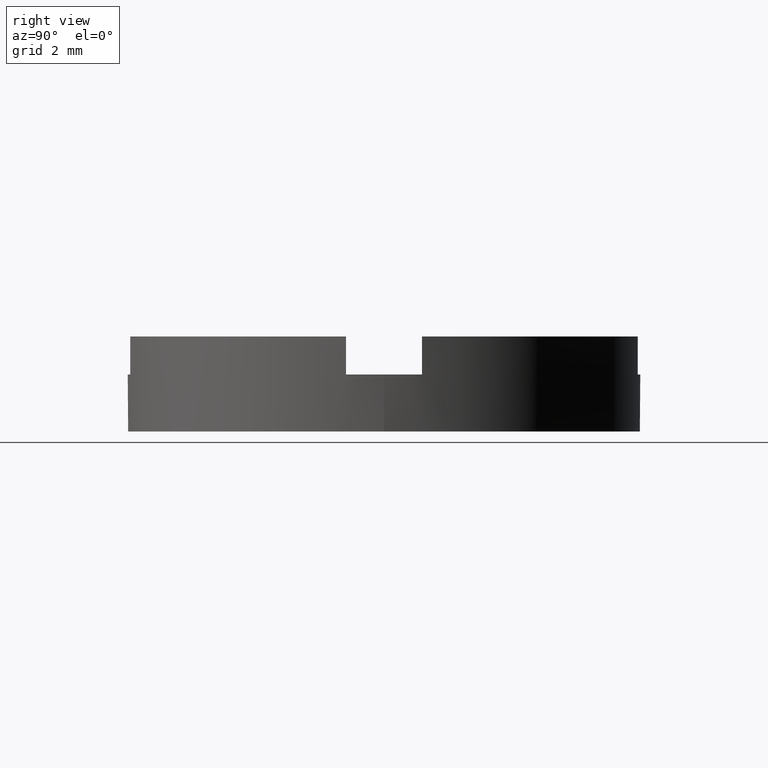
[diagram: clean part render]
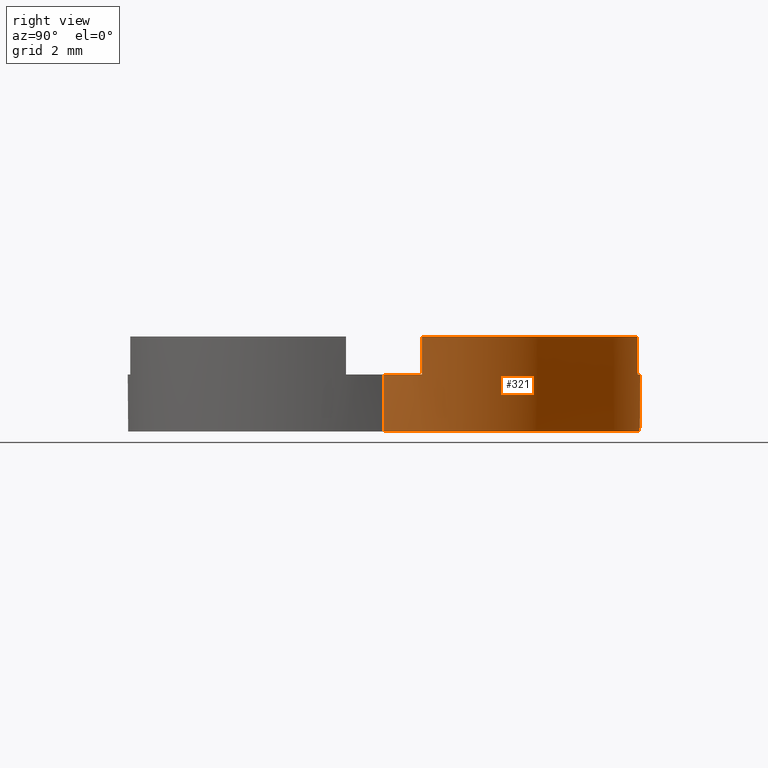
[diagram: same view with one face highlighted and labeled with its STEP entity id]
A machine part, right view. The second image highlights one B-rep face of the part: STEP entity #321.
In plain terms, the highlighted cylindrical surface (partial cylindrical patch) has radius 6.75 mm, axis along (-0, -0, -1).
Its self-contained STEP definition (entity closure, byte-faithful):
#16 = AXIS2_PLACEMENT_3D ( 'NONE', #192, #484, #525 ) ;
#33 = DIRECTION ( 'NONE',  ( 1.000000000000000000, 0.000000000000000000, 0.000000000000000000 ) ) ;
#34 = AXIS2_PLACEMENT_3D ( 'NONE', #264, #398, #759 ) ;
#45 = CIRCLE ( 'NONE', #547, 6.750000000000000000 ) ;
#48 = LINE ( 'NONE', #218, #54 ) ;
#54 = VECTOR ( 'NONE', #160, 1000.000000000000000 ) ;
#55 = AXIS2_PLACEMENT_3D ( 'NONE', #100, #286, #506 ) ;
#58 = CIRCLE ( 'NONE', #34, 6.750000000000000000 ) ;
#69 = EDGE_CURVE ( 'NONE', #336, #621, #58, .T. ) ;
#70 = DIRECTION ( 'NONE',  ( 0.000000000000000000, 0.000000000000000000, 1.000000000000000000 ) ) ;
#74 = VERTEX_POINT ( 'NONE', #554 ) ;
#77 = VECTOR ( 'NONE', #776, 1000.000000000000000 ) ;
#100 = CARTESIAN_POINT ( 'NONE',  ( 0.000000000000000000, 0.000000000000000000, 2.500000000000000000 ) ) ;
#104 = CIRCLE ( 'NONE', #134, 6.750000000000000000 ) ;
#110 = LINE ( 'NONE', #292, #77 ) ;
#111 = ORIENTED_EDGE ( 'NONE', *, *, #700, .F. ) ;
#112 = CARTESIAN_POINT ( 'NONE',  ( 6.675514961409347414, 0.9999999999999737987, 1.500000000000000000 ) ) ;
#119 = ORIENTED_EDGE ( 'NONE', *, *, #782, .F. ) ;
#124 = ORIENTED_EDGE ( 'NONE', *, *, #415, .F. ) ;
#125 = CARTESIAN_POINT ( 'NONE',  ( 1.000000000000001332, 6.675514961409343861, 2.500000000000000000 ) ) ;
#131 = CIRCLE ( 'NONE', #178, 6.750000000000000000 ) ;
#134 = AXIS2_PLACEMENT_3D ( 'NONE', #705, #771, #33 ) ;
#135 = CARTESIAN_POINT ( 'NONE',  ( 1.000000000000001332, 6.675514961409343861, 1.500000000000000000 ) ) ;
#136 = EDGE_LOOP ( 'NONE', ( #119, #202, #726, #380, #124, #386, #636, #111, #742, #743, #460, #666 ) ) ;
#148 = CARTESIAN_POINT ( 'NONE',  ( -6.675514961409340309, 1.000000000000023981, 1.500000000000000000 ) ) ;
#154 = EDGE_CURVE ( 'NONE', #461, #621, #48, .T. ) ;
#160 = DIRECTION ( 'NONE',  ( -0.000000000000000000, -0.000000000000000000, -1.000000000000000000 ) ) ;
#173 = CARTESIAN_POINT ( 'NONE',  ( -0.9999999999999986677, 6.675514961409343861, 1.500000000000000000 ) ) ;
#178 = AXIS2_PLACEMENT_3D ( 'NONE', #190, #676, #377 ) ;
#190 = CARTESIAN_POINT ( 'NONE',  ( 0.000000000000000000, 0.000000000000000000, 1.500000000000000000 ) ) ;
#192 = CARTESIAN_POINT ( 'NONE',  ( 0.000000000000000000, 0.000000000000000000, 1.500000000000000000 ) ) ;
#202 = ORIENTED_EDGE ( 'NONE', *, *, #733, .T. ) ;
#210 = DIRECTION ( 'NONE',  ( -0.000000000000000000, -0.000000000000000000, 1.000000000000000000 ) ) ;
#217 = CARTESIAN_POINT ( 'NONE',  ( 1.000000000000001332, 6.675514961409343861, 1.500000000000000000 ) ) ;
#218 = CARTESIAN_POINT ( 'NONE',  ( -6.750000000000000000, 0.000000000000000000, 2.500000000000000000 ) ) ;
#230 = VERTEX_POINT ( 'NONE', #269 ) ;
#238 = DIRECTION ( 'NONE',  ( -0.000000000000000000, -0.000000000000000000, 1.000000000000000000 ) ) ;
#239 = EDGE_CURVE ( 'NONE', #449, #463, #330, .T. ) ;
#248 = CARTESIAN_POINT ( 'NONE',  ( -6.675514961409340309, 1.000000000000023981, 1.500000000000000000 ) ) ;
#250 = EDGE_CURVE ( 'NONE', #230, #74, #45, .T. ) ;
#257 = DIRECTION ( 'NONE',  ( 0.000000000000000000, 0.000000000000000000, 1.000000000000000000 ) ) ;
#264 = CARTESIAN_POINT ( 'NONE',  ( 0.000000000000000000, 0.000000000000000000, 0.000000000000000000 ) ) ;
#267 = EDGE_CURVE ( 'NONE', #480, #463, #309, .T. ) ;
#269 = CARTESIAN_POINT ( 'NONE',  ( -0.9999999999999986677, 6.675514961409343861, 2.500000000000000000 ) ) ;
#286 = DIRECTION ( 'NONE',  ( -0.000000000000000000, -0.000000000000000000, -1.000000000000000000 ) ) ;
#290 = CARTESIAN_POINT ( 'NONE',  ( 6.675514961409347414, 0.9999999999999737987, 2.500000000000000000 ) ) ;
#292 = CARTESIAN_POINT ( 'NONE',  ( 6.750000000000000000, 8.266365894244634333E-16, 2.500000000000000000 ) ) ;
#309 = LINE ( 'NONE', #217, #593 ) ;
#319 = DIRECTION ( 'NONE',  ( 1.000000000000000000, 0.000000000000000000, 0.000000000000000000 ) ) ;
#321 = ADVANCED_FACE ( 'NONE', ( #605 ), #624, .T. ) ;
#326 = DIRECTION ( 'NONE',  ( -0.000000000000000000, -0.000000000000000000, 1.000000000000000000 ) ) ;
#330 = CIRCLE ( 'NONE', #455, 6.750000000000000000 ) ;
#336 = VERTEX_POINT ( 'NONE', #550 ) ;
#342 = LINE ( 'NONE', #418, #363 ) ;
#354 = CARTESIAN_POINT ( 'NONE',  ( -6.750000000000000000, 0.000000000000000000, 1.500000000000000000 ) ) ;
#356 = VECTOR ( 'NONE', #210, 1000.000000000000000 ) ;
#363 = VECTOR ( 'NONE', #773, 1000.000000000000000 ) ;
#367 = VECTOR ( 'NONE', #238, 1000.000000000000000 ) ;
#377 = DIRECTION ( 'NONE',  ( 1.000000000000000000, 0.000000000000000000, 0.000000000000000000 ) ) ;
#380 = ORIENTED_EDGE ( 'NONE', *, *, #154, .F. ) ;
#386 = ORIENTED_EDGE ( 'NONE', *, *, #504, .T. ) ;
#392 = CIRCLE ( 'NONE', #16, 6.750000000000000000 ) ;
#398 = DIRECTION ( 'NONE',  ( 0.000000000000000000, 0.000000000000000000, 1.000000000000000000 ) ) ;
#415 = EDGE_CURVE ( 'NONE', #599, #461, #104, .T. ) ;
#418 = CARTESIAN_POINT ( 'NONE',  ( 6.675514961409347414, 0.9999999999999737987, 1.500000000000000000 ) ) ;
#431 = CARTESIAN_POINT ( 'NONE',  ( 6.750000000000000000, 8.266365894244634333E-16, 1.500000000000000000 ) ) ;
#447 = DIRECTION ( 'NONE',  ( 1.000000000000000000, 0.000000000000000000, 0.000000000000000000 ) ) ;
#449 = VERTEX_POINT ( 'NONE', #290 ) ;
#455 = AXIS2_PLACEMENT_3D ( 'NONE', #695, #70, #447 ) ;
#460 = ORIENTED_EDGE ( 'NONE', *, *, #239, .F. ) ;
#461 = VERTEX_POINT ( 'NONE', #354 ) ;
#463 = VERTEX_POINT ( 'NONE', #125 ) ;
#480 = VERTEX_POINT ( 'NONE', #135 ) ;
#484 = DIRECTION ( 'NONE',  ( -0.000000000000000000, 0.000000000000000000, 1.000000000000000000 ) ) ;
#504 = EDGE_CURVE ( 'NONE', #599, #74, #604, .T. ) ;
#506 = DIRECTION ( 'NONE',  ( -1.000000000000000000, 0.000000000000000000, 0.000000000000000000 ) ) ;
#525 = DIRECTION ( 'NONE',  ( 1.000000000000000000, 0.000000000000000000, 0.000000000000000000 ) ) ;
#547 = AXIS2_PLACEMENT_3D ( 'NONE', #678, #257, #319 ) ;
#550 = CARTESIAN_POINT ( 'NONE',  ( 6.750000000000000000, 8.266365894244634333E-16, 0.000000000000000000 ) ) ;
#554 = CARTESIAN_POINT ( 'NONE',  ( -6.675514961409340309, 1.000000000000023981, 2.500000000000000000 ) ) ;
#593 = VECTOR ( 'NONE', #326, 1000.000000000000000 ) ;
#599 = VERTEX_POINT ( 'NONE', #248 ) ;
#604 = LINE ( 'NONE', #148, #356 ) ;
#605 = FACE_OUTER_BOUND ( 'NONE', #136, .T. ) ;
#621 = VERTEX_POINT ( 'NONE', #721 ) ;
#624 = CYLINDRICAL_SURFACE ( 'NONE', #55, 6.750000000000000000 ) ;
#634 = LINE ( 'NONE', #173, #367 ) ;
#636 = ORIENTED_EDGE ( 'NONE', *, *, #250, .F. ) ;
#660 = EDGE_CURVE ( 'NONE', #694, #449, #342, .T. ) ;
#666 = ORIENTED_EDGE ( 'NONE', *, *, #660, .F. ) ;
#676 = DIRECTION ( 'NONE',  ( -0.000000000000000000, 0.000000000000000000, 1.000000000000000000 ) ) ;
#678 = CARTESIAN_POINT ( 'NONE',  ( 0.000000000000000000, 0.000000000000000000, 2.500000000000000000 ) ) ;
#694 = VERTEX_POINT ( 'NONE', #112 ) ;
#695 = CARTESIAN_POINT ( 'NONE',  ( 0.000000000000000000, 0.000000000000000000, 2.500000000000000000 ) ) ;
#700 = EDGE_CURVE ( 'NONE', #727, #230, #634, .T. ) ;
#705 = CARTESIAN_POINT ( 'NONE',  ( 0.000000000000000000, 0.000000000000000000, 1.500000000000000000 ) ) ;
#721 = CARTESIAN_POINT ( 'NONE',  ( -6.750000000000000000, 0.000000000000000000, 0.000000000000000000 ) ) ;
#726 = ORIENTED_EDGE ( 'NONE', *, *, #69, .T. ) ;
#727 = VERTEX_POINT ( 'NONE', #729 ) ;
#729 = CARTESIAN_POINT ( 'NONE',  ( -0.9999999999999986677, 6.675514961409343861, 1.500000000000000000 ) ) ;
#733 = EDGE_CURVE ( 'NONE', #750, #336, #110, .T. ) ;
#742 = ORIENTED_EDGE ( 'NONE', *, *, #755, .F. ) ;
#743 = ORIENTED_EDGE ( 'NONE', *, *, #267, .T. ) ;
#750 = VERTEX_POINT ( 'NONE', #431 ) ;
#755 = EDGE_CURVE ( 'NONE', #480, #727, #131, .T. ) ;
#759 = DIRECTION ( 'NONE',  ( 1.000000000000000000, 0.000000000000000000, 0.000000000000000000 ) ) ;
#771 = DIRECTION ( 'NONE',  ( -0.000000000000000000, 0.000000000000000000, 1.000000000000000000 ) ) ;
#773 = DIRECTION ( 'NONE',  ( -0.000000000000000000, -0.000000000000000000, 1.000000000000000000 ) ) ;
#776 = DIRECTION ( 'NONE',  ( -0.000000000000000000, -0.000000000000000000, -1.000000000000000000 ) ) ;
#782 = EDGE_CURVE ( 'NONE', #750, #694, #392, .T. ) ;